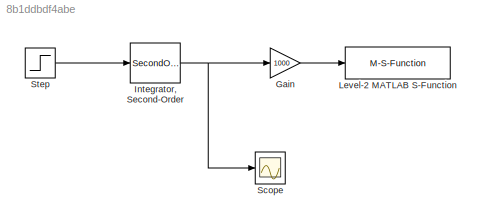
MODEL slx_8b1ddbdf4abe
KIND model
CONFIG AbsTol = auto
CONFIG EnableMultiTasking = off
CONFIG FixedStep = 0.02
CONFIG MaxStep = auto
CONFIG MinStep = auto
CONFIG RelTol = 1e-3
CONFIG SampleTimeConstraint = Unconstrained
CONFIG SolverName = FixedStepAuto
CONFIG StartTime = 0.0
CONFIG StopTime = 10.0
BLOCK [Gain] Gain
  Gain = 1000
BLOCK [SecondOrderIntegrator] Integrator, Second-Order
  ShowOutput = x
BLOCK [M-S-Function] Level-2 MATLAB S-Function
  FunctionName = render_to_MICSys
BLOCK [Scope] Scope
  ActiveDisplayYMaximum = 47.434279423180136
  ActiveDisplayYMinimum = -14.584263144301193
  Floating = off
  GraphicalSettings = {"Style":{"BackgroundColor":[0.12941176470588237,0.12941176470588237,0.12941176470588237],"AxesColor":[0.07058823529411765,0.07058823529411765,0.07058823529411765],"LabelsColor":[0.8509803921568627,0.8509803921568627,0.8509803921568627],"PreserveColors":false,"Visible":[true],"LineStyle":["-"],"LineWidth":[1.5],"BarWidth":[0.9],"LineColor":["auto"],"LineFaceAlpha":[1],"LineEdgeAlpha":[1],"Marker":...<+1999ch>
  MultipleDisplayCache = [{"MaxYLimMag":1,"MaxYLimReal":47.434279423180136,"MinYLimMag":0,"MinYLimReal":-14.584263144301193,"PlotAsMagnitudePhase":false,"ShowGrid":true,"ShowLegend":false,"Title":"%<SignalLabel>","YLabel":""}]
  NumInputPorts = 1
  ScopeFrameLocation = window
  WasSavedAsWebScope = on
  WindowPosition = [269.000000,221.000000,560.000000,420.000000,]
BLOCK [Step] Step
  SampleTime = 0
LINE Gain:1 -> Level-2 MATLAB S-Function:1
NET Integrator, Second-Order:1 -> Gain:1, Scope:1
LINE Step:1 -> Integrator, Second-Order:1
note: NET lines group one-source signal fan-out (src -> all destinations, sorted); 1:1 wires keep LINE
